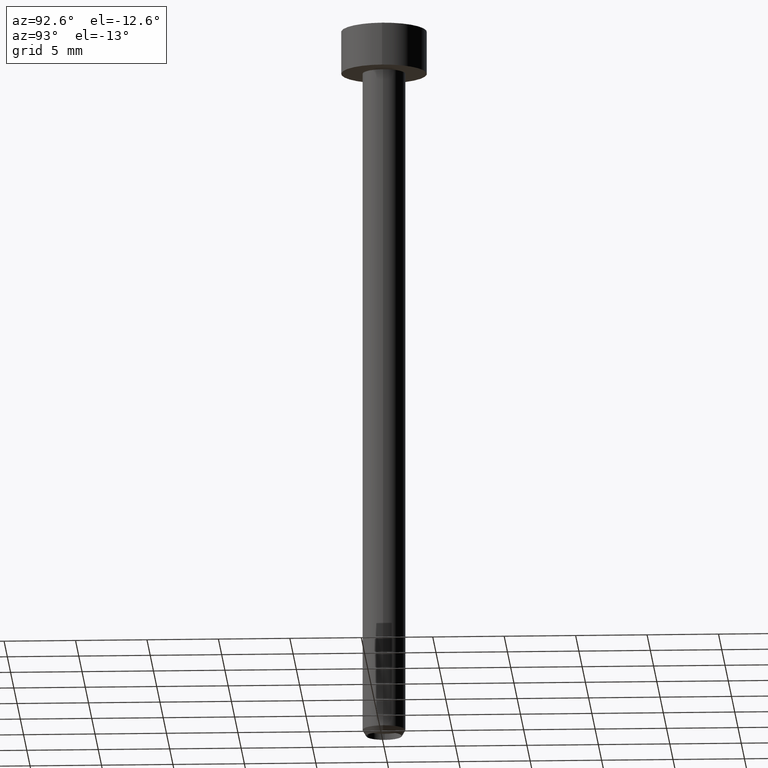
[diagram: clean part render]
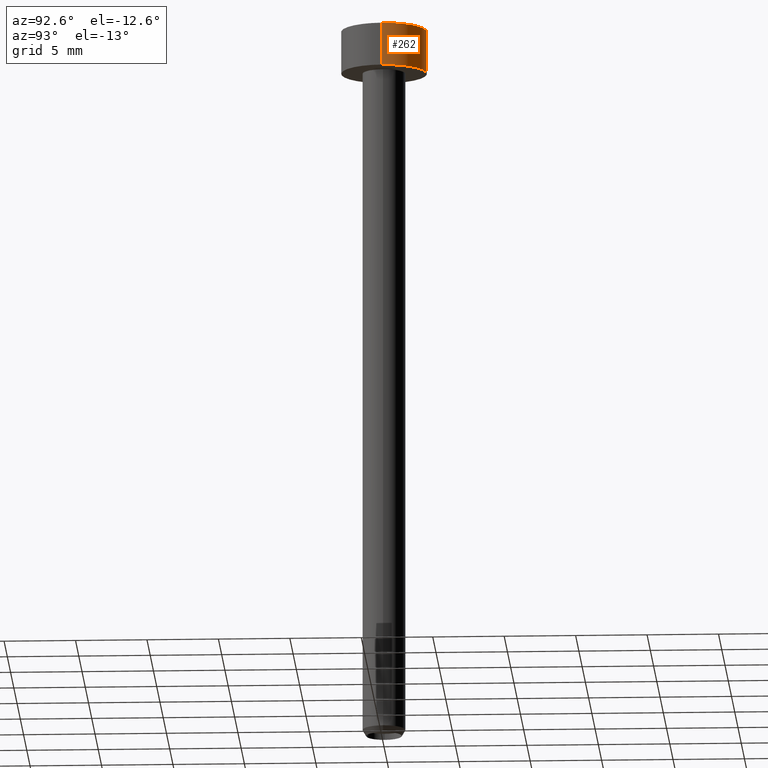
[diagram: same view with one face highlighted and labeled with its STEP entity id]
A machine part, auxiliary view. The second image highlights one B-rep face of the part: STEP entity #262.
In plain terms, the highlighted cylindrical surface (partial cylindrical patch) has radius 3 mm, axis along (-0, -0, 1).
Its self-contained STEP definition (entity closure, byte-faithful):
#2 = DIRECTION ( 'NONE',  ( -0.000000000000000000, -0.000000000000000000, 1.000000000000000000 ) ) ;
#19 = EDGE_CURVE ( 'NONE', #35, #319, #253, .T. ) ;
#27 = VECTOR ( 'NONE', #151, 1000.000000000000000 ) ;
#35 = VERTEX_POINT ( 'NONE', #112 ) ;
#42 = EDGE_CURVE ( 'NONE', #319, #217, #195, .T. ) ;
#44 = VERTEX_POINT ( 'NONE', #110 ) ;
#47 = EDGE_LOOP ( 'NONE', ( #52, #79, #307, #48 ) ) ;
#48 = ORIENTED_EDGE ( 'NONE', *, *, #155, .F. ) ;
#52 = ORIENTED_EDGE ( 'NONE', *, *, #19, .T. ) ;
#59 = CARTESIAN_POINT ( 'NONE',  ( -3.000000000000000000, 3.673940397442059868E-16, 0.000000000000000000 ) ) ;
#69 = VECTOR ( 'NONE', #272, 1000.000000000000000 ) ;
#79 = ORIENTED_EDGE ( 'NONE', *, *, #42, .T. ) ;
#83 = DIRECTION ( 'NONE',  ( 1.000000000000000000, 0.000000000000000000, 0.000000000000000000 ) ) ;
#106 = CARTESIAN_POINT ( 'NONE',  ( 3.000000000000000000, 0.000000000000000000, 0.000000000000000000 ) ) ;
#107 = DIRECTION ( 'NONE',  ( 1.000000000000000000, 0.000000000000000000, 0.000000000000000000 ) ) ;
#110 = CARTESIAN_POINT ( 'NONE',  ( 3.000000000000000000, 0.000000000000000000, -3.673940397442059868E-16 ) ) ;
#112 = CARTESIAN_POINT ( 'NONE',  ( 3.000000000000000000, 0.000000000000000000, -3.000000000000000444 ) ) ;
#115 = CARTESIAN_POINT ( 'NONE',  ( 0.000000000000000000, 0.000000000000000000, -3.673940397442059868E-16 ) ) ;
#142 = CYLINDRICAL_SURFACE ( 'NONE', #246, 3.000000000000000000 ) ;
#151 = DIRECTION ( 'NONE',  ( -0.000000000000000000, -0.000000000000000000, 1.000000000000000000 ) ) ;
#155 = EDGE_CURVE ( 'NONE', #35, #44, #264, .T. ) ;
#166 = CARTESIAN_POINT ( 'NONE',  ( 0.000000000000000000, 0.000000000000000000, 0.000000000000000000 ) ) ;
#195 = LINE ( 'NONE', #59, #69 ) ;
#196 = EDGE_CURVE ( 'NONE', #44, #217, #261, .T. ) ;
#197 = DIRECTION ( 'NONE',  ( -0.000000000000000000, -0.000000000000000000, 1.000000000000000000 ) ) ;
#217 = VERTEX_POINT ( 'NONE', #247 ) ;
#222 = DIRECTION ( 'NONE',  ( -0.000000000000000000, -0.000000000000000000, 1.000000000000000000 ) ) ;
#226 = DIRECTION ( 'NONE',  ( 1.000000000000000000, 0.000000000000000000, 0.000000000000000000 ) ) ;
#231 = AXIS2_PLACEMENT_3D ( 'NONE', #115, #197, #107 ) ;
#246 = AXIS2_PLACEMENT_3D ( 'NONE', #166, #2, #226 ) ;
#247 = CARTESIAN_POINT ( 'NONE',  ( -3.000000000000000000, 3.673940397442059868E-16, -3.673940397442059868E-16 ) ) ;
#253 = CIRCLE ( 'NONE', #312, 3.000000000000000000 ) ;
#256 = CARTESIAN_POINT ( 'NONE',  ( -3.000000000000000000, 3.673940397442059868E-16, -3.000000000000000444 ) ) ;
#261 = CIRCLE ( 'NONE', #231, 3.000000000000000000 ) ;
#262 = ADVANCED_FACE ( 'NONE', ( #282 ), #142, .T. ) ;
#264 = LINE ( 'NONE', #106, #27 ) ;
#272 = DIRECTION ( 'NONE',  ( -0.000000000000000000, -0.000000000000000000, 1.000000000000000000 ) ) ;
#282 = FACE_OUTER_BOUND ( 'NONE', #47, .T. ) ;
#297 = CARTESIAN_POINT ( 'NONE',  ( 0.000000000000000000, 0.000000000000000000, -3.000000000000000444 ) ) ;
#307 = ORIENTED_EDGE ( 'NONE', *, *, #196, .F. ) ;
#312 = AXIS2_PLACEMENT_3D ( 'NONE', #297, #222, #83 ) ;
#319 = VERTEX_POINT ( 'NONE', #256 ) ;